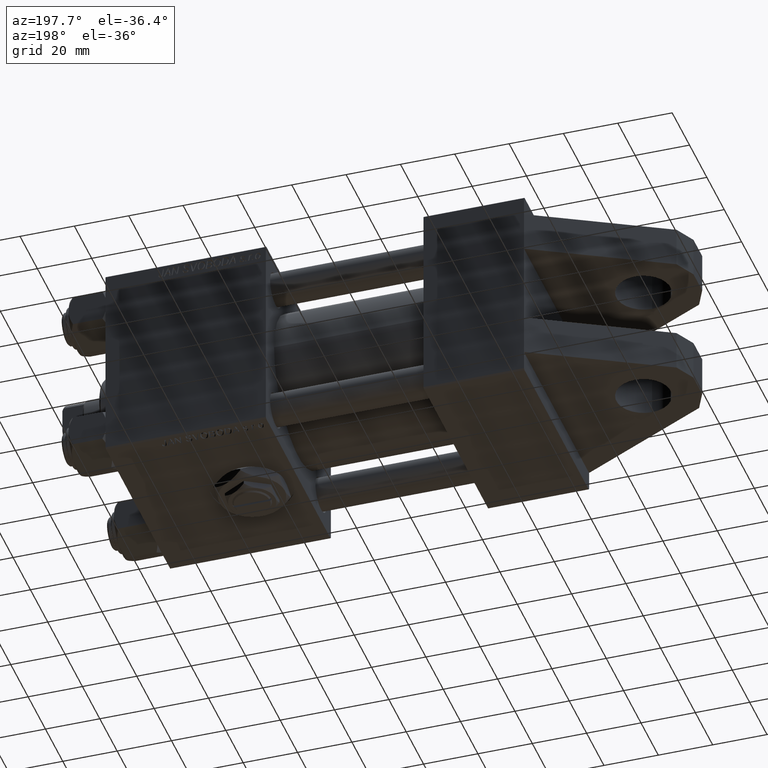
[diagram: clean part render]
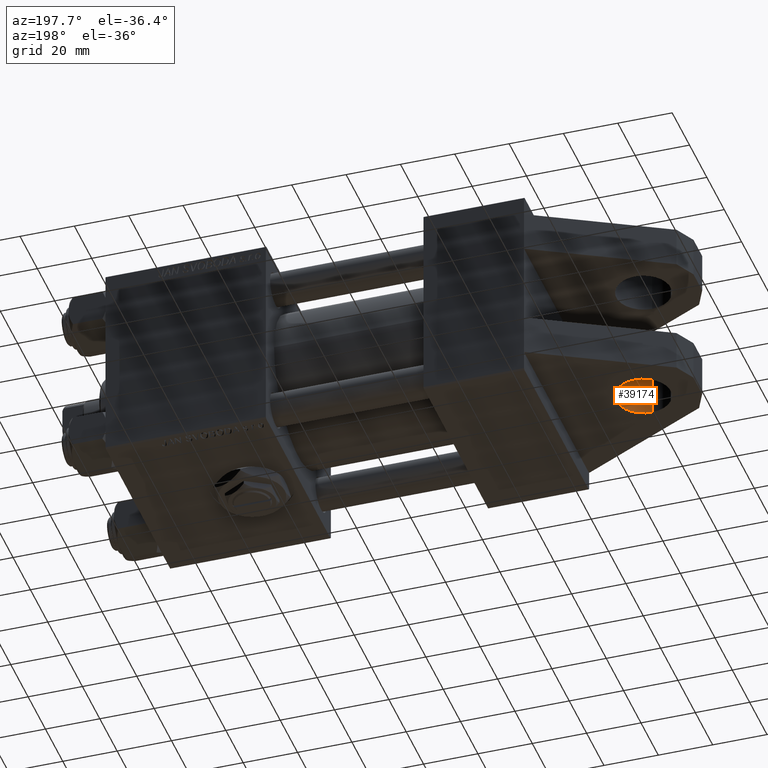
[diagram: same view with one face highlighted and labeled with its STEP entity id]
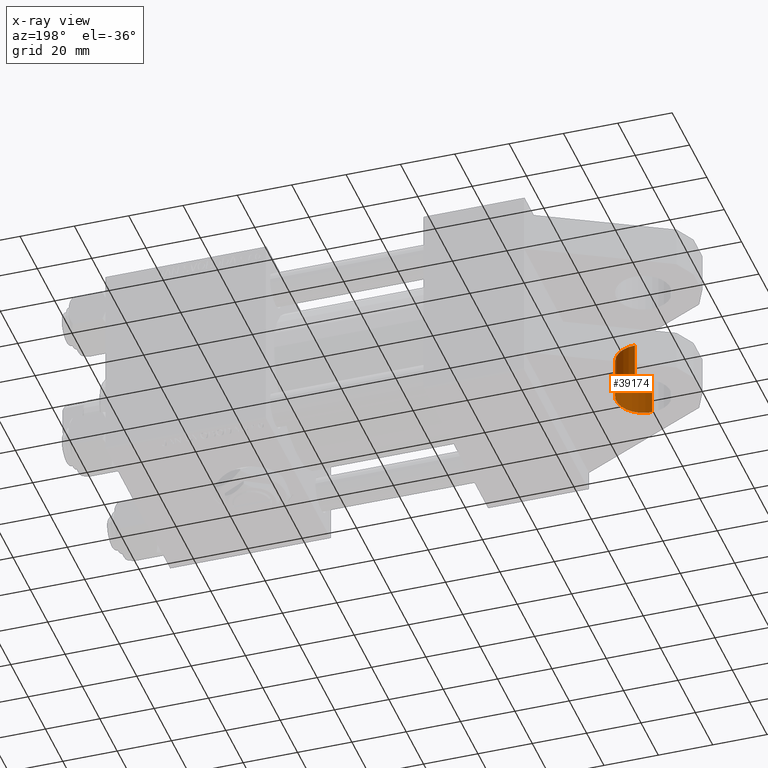
[diagram: x-ray of the same camera — body ghosted, the highlighted face saturated]
A machine part, auxiliary view. The second image highlights one B-rep face of the part: STEP entity #39174.
The next image is the same camera in x-ray: the body ghosted, the highlighted face saturated — about 0% of this face is hidden behind the body in this view.
In plain terms, the highlighted cylindrical surface (edge-blend (fillet) strip) has radius 10 mm, axis along (-0, -0, 1).
Its self-contained STEP definition (entity closure, byte-faithful):
#1560 = VECTOR ( 'NONE', #50433, 1000.000000000000000 ) ;
#4128 = CARTESIAN_POINT ( 'NONE',  ( -32.00000000000000000, 30.00000000000000000, 9.999999999999992895 ) ) ;
#4516 = ORIENTED_EDGE ( 'NONE', *, *, #17206, .F. ) ;
#4884 = LINE ( 'NONE', #11639, #39729 ) ;
#6149 = DIRECTION ( 'NONE',  ( 0.000000000000000000, 1.000000000000000000, 0.000000000000000000 ) ) ;
#6257 = CARTESIAN_POINT ( 'NONE',  ( -32.00000000000000000, 30.00000000000000000, -10.00000000000000711 ) ) ;
#10092 = DIRECTION ( 'NONE',  ( -0.000000000000000000, -1.000000000000000000, -0.000000000000000000 ) ) ;
#10596 = EDGE_CURVE ( 'NONE', #24117, #27976, #42872, .T. ) ;
#10772 = CIRCLE ( 'NONE', #45622, 10.00000000000000000 ) ;
#11166 = EDGE_CURVE ( 'NONE', #22636, #24117, #29657, .T. ) ;
#11639 = CARTESIAN_POINT ( 'NONE',  ( -32.00000000000000000, 30.00000000000000000, 9.999999999999992895 ) ) ;
#13233 = DIRECTION ( 'NONE',  ( 0.000000000000000000, 0.000000000000000000, -1.000000000000000000 ) ) ;
#13478 = CARTESIAN_POINT ( 'NONE',  ( -32.00000000000000000, 15.00000000000000000, -6.938893903907228378E-15 ) ) ;
#16750 = ORIENTED_EDGE ( 'NONE', *, *, #10596, .T. ) ;
#17206 = EDGE_CURVE ( 'NONE', #48951, #27976, #10772, .T. ) ;
#21038 = DIRECTION ( 'NONE',  ( 0.000000000000000000, 1.000000000000000000, 0.000000000000000000 ) ) ;
#21049 = FACE_OUTER_BOUND ( 'NONE', #33762, .T. ) ;
#21434 = CARTESIAN_POINT ( 'NONE',  ( -32.00000000000000000, 15.00000000000000000, -10.00000000000000711 ) ) ;
#21643 = ORIENTED_EDGE ( 'NONE', *, *, #11166, .T. ) ;
#22636 = VERTEX_POINT ( 'NONE', #4128 ) ;
#24117 = VERTEX_POINT ( 'NONE', #48734 ) ;
#25932 = CYLINDRICAL_SURFACE ( 'NONE', #40590, 10.00000000000000000 ) ;
#27976 = VERTEX_POINT ( 'NONE', #21434 ) ;
#29657 = CIRCLE ( 'NONE', #38812, 10.00000000000000000 ) ;
#32438 = DIRECTION ( 'NONE',  ( 0.000000000000000000, 0.000000000000000000, 1.000000000000000000 ) ) ;
#33649 = DIRECTION ( 'NONE',  ( 0.000000000000000000, 0.000000000000000000, 1.000000000000000000 ) ) ;
#33762 = EDGE_LOOP ( 'NONE', ( #49270, #21643, #16750, #4516 ) ) ;
#38812 = AXIS2_PLACEMENT_3D ( 'NONE', #49283, #6149, #33649 ) ;
#39174 = ADVANCED_FACE ( 'NONE', ( #21049 ), #25932, .F. ) ;
#39415 = EDGE_CURVE ( 'NONE', #22636, #48951, #4884, .T. ) ;
#39729 = VECTOR ( 'NONE', #43326, 1000.000000000000000 ) ;
#40590 = AXIS2_PLACEMENT_3D ( 'NONE', #49850, #10092, #13233 ) ;
#42872 = LINE ( 'NONE', #6257, #1560 ) ;
#43326 = DIRECTION ( 'NONE',  ( -0.000000000000000000, -1.000000000000000000, -0.000000000000000000 ) ) ;
#43425 = CARTESIAN_POINT ( 'NONE',  ( -32.00000000000000000, 15.00000000000000000, 9.999999999999992895 ) ) ;
#45622 = AXIS2_PLACEMENT_3D ( 'NONE', #13478, #21038, #32438 ) ;
#48734 = CARTESIAN_POINT ( 'NONE',  ( -32.00000000000000000, 30.00000000000000000, -10.00000000000000711 ) ) ;
#48951 = VERTEX_POINT ( 'NONE', #43425 ) ;
#49270 = ORIENTED_EDGE ( 'NONE', *, *, #39415, .F. ) ;
#49283 = CARTESIAN_POINT ( 'NONE',  ( -32.00000000000000000, 30.00000000000000000, -6.938893903907228378E-15 ) ) ;
#49850 = CARTESIAN_POINT ( 'NONE',  ( -32.00000000000000000, 30.00000000000000000, -6.938893903907228378E-15 ) ) ;
#50433 = DIRECTION ( 'NONE',  ( -0.000000000000000000, -1.000000000000000000, -0.000000000000000000 ) ) ;